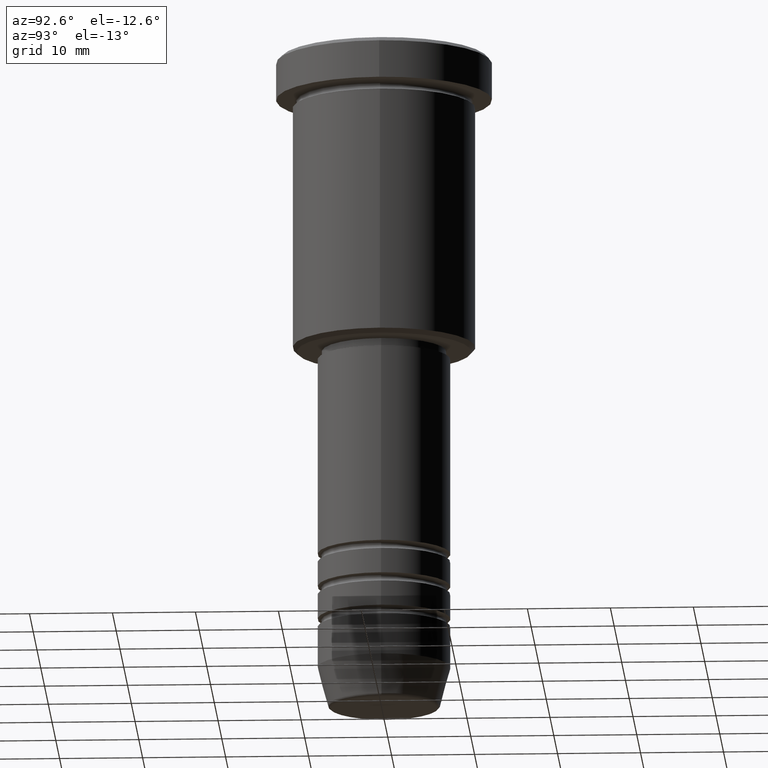
[diagram: clean part render]
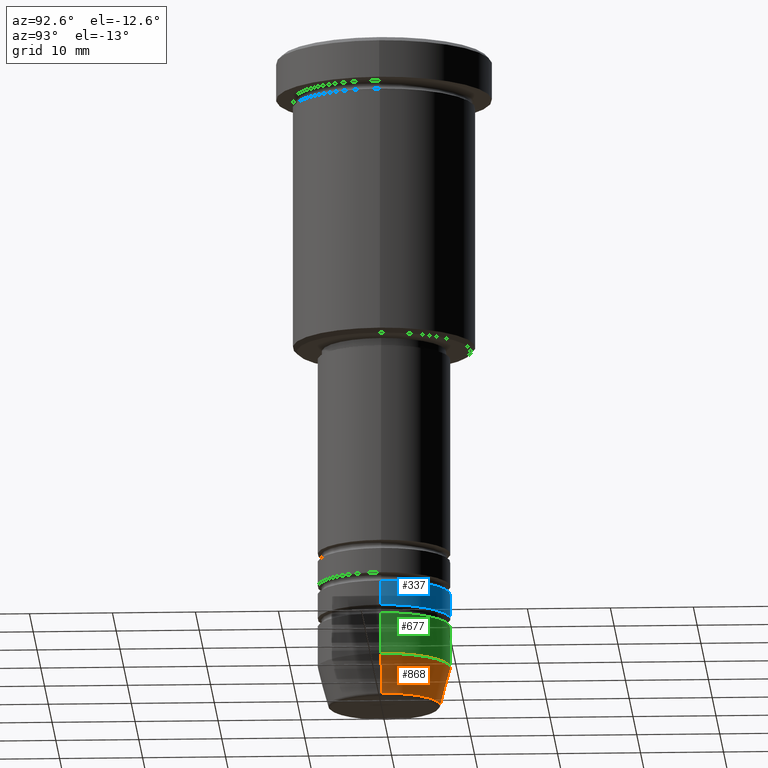
[diagram: same view with three faces highlighted in distinct colors, each labeled with its STEP entity id]
A machine part, auxiliary view with three faces highlighted in distinct colors.
Their STEP definitions:

[orange] entity #868 — the highlighted conical surface has half-angle 15 deg.
#4 = CARTESIAN_POINT ( 'NONE',  ( 0.000000000000000000, 0.000000000000000000, -79.62940952255127058 ) ) ;
#24 = EDGE_CURVE ( 'NONE', #238, #452, #613, .T. ) ;
#66 = CARTESIAN_POINT ( 'NONE',  ( -8.000000000000000000, 9.797174393178825657E-16, -75.00000000000001421 ) ) ;
#72 = LINE ( 'NONE', #982, #1026 ) ;
#75 = DIRECTION ( 'NONE',  ( 1.000000000000000000, 0.000000000000000000, 0.000000000000000000 ) ) ;
#105 = CARTESIAN_POINT ( 'NONE',  ( 0.000000000000000000, 0.000000000000000000, -75.00000000000001421 ) ) ;
#109 = DIRECTION ( 'NONE',  ( -0.000000000000000000, -0.000000000000000000, 1.000000000000000000 ) ) ;
#158 = EDGE_CURVE ( 'NONE', #893, #238, #929, .T. ) ;
#182 = DIRECTION ( 'NONE',  ( 0.2588190451025214611, 0.000000000000000000, 0.9659258262890679791 ) ) ;
#186 = CARTESIAN_POINT ( 'NONE',  ( 8.000000000000000000, 0.000000000000000000, -75.00000000000001421 ) ) ;
#225 = VERTEX_POINT ( 'NONE', #186 ) ;
#238 = VERTEX_POINT ( 'NONE', #559 ) ;
#244 = DIRECTION ( 'NONE',  ( -0.2588190451025214611, 3.169619151431774186E-17, 0.9659258262890679791 ) ) ;
#300 = FACE_OUTER_BOUND ( 'NONE', #925, .T. ) ;
#334 = VECTOR ( 'NONE', #244, 1000.000000000000114 ) ;
#343 = AXIS2_PLACEMENT_3D ( 'NONE', #105, #109, #381 ) ;
#351 = ORIENTED_EDGE ( 'NONE', *, *, #24, .T. ) ;
#352 = DIRECTION ( 'NONE',  ( 1.000000000000000000, 0.000000000000000000, 0.000000000000000000 ) ) ;
#381 = DIRECTION ( 'NONE',  ( 1.000000000000000000, 0.000000000000000000, 0.000000000000000000 ) ) ;
#452 = VERTEX_POINT ( 'NONE', #1138 ) ;
#466 = ORIENTED_EDGE ( 'NONE', *, *, #662, .F. ) ;
#470 = CONICAL_SURFACE ( 'NONE', #343, 8.000000000000000000, 0.2617993877991502405 ) ;
#532 = CIRCLE ( 'NONE', #796, 8.000000000000000000 ) ;
#559 = CARTESIAN_POINT ( 'NONE',  ( -6.759553456999441323, 9.037619948979308185E-16, -79.62940952255127058 ) ) ;
#578 = CARTESIAN_POINT ( 'NONE',  ( 6.759553456999440435, 0.000000000000000000, -79.62940952255127058 ) ) ;
#613 = LINE ( 'NONE', #66, #334 ) ;
#662 = EDGE_CURVE ( 'NONE', #893, #225, #72, .T. ) ;
#733 = DIRECTION ( 'NONE',  ( -0.000000000000000000, -0.000000000000000000, 1.000000000000000000 ) ) ;
#783 = CARTESIAN_POINT ( 'NONE',  ( 0.000000000000000000, 0.000000000000000000, -75.00000000000001421 ) ) ;
#796 = AXIS2_PLACEMENT_3D ( 'NONE', #783, #1147, #352 ) ;
#868 = ADVANCED_FACE ( 'NONE', ( #300 ), #470, .T. ) ;
#893 = VERTEX_POINT ( 'NONE', #578 ) ;
#925 = EDGE_LOOP ( 'NONE', ( #1165, #351, #972, #466 ) ) ;
#929 = CIRCLE ( 'NONE', #1140, 6.759553456999440435 ) ;
#972 = ORIENTED_EDGE ( 'NONE', *, *, #1045, .F. ) ;
#982 = CARTESIAN_POINT ( 'NONE',  ( 8.000000000000000000, 0.000000000000000000, -75.00000000000001421 ) ) ;
#1026 = VECTOR ( 'NONE', #182, 1000.000000000000114 ) ;
#1045 = EDGE_CURVE ( 'NONE', #225, #452, #532, .T. ) ;
#1138 = CARTESIAN_POINT ( 'NONE',  ( -8.000000000000000000, 9.797174393178825657E-16, -75.00000000000001421 ) ) ;
#1140 = AXIS2_PLACEMENT_3D ( 'NONE', #4, #733, #75 ) ;
#1147 = DIRECTION ( 'NONE',  ( -0.000000000000000000, -0.000000000000000000, 1.000000000000000000 ) ) ;
#1165 = ORIENTED_EDGE ( 'NONE', *, *, #158, .T. ) ;

[blue] entity #337 — the highlighted cylindrical surface (partial cylindrical patch) has radius 8 mm, axis along (-0, -0, 1).
#18 = VECTOR ( 'NONE', #1100, 1000.000000000000000 ) ;
#32 = VERTEX_POINT ( 'NONE', #524 ) ;
#46 = VECTOR ( 'NONE', #429, 1000.000000000000000 ) ;
#76 = EDGE_CURVE ( 'NONE', #32, #824, #525, .T. ) ;
#89 = CARTESIAN_POINT ( 'NONE',  ( -8.000000000000000000, 9.797174393178825657E-16, -69.00000000000000000 ) ) ;
#90 = EDGE_CURVE ( 'NONE', #1152, #824, #1156, .T. ) ;
#116 = CIRCLE ( 'NONE', #725, 8.000000000000000000 ) ;
#155 = CARTESIAN_POINT ( 'NONE',  ( 0.000000000000000000, 0.000000000000000000, -66.00000000000000000 ) ) ;
#202 = DIRECTION ( 'NONE',  ( 1.000000000000000000, 0.000000000000000000, 0.000000000000000000 ) ) ;
#215 = DIRECTION ( 'NONE',  ( -0.000000000000000000, -0.000000000000000000, 1.000000000000000000 ) ) ;
#223 = CARTESIAN_POINT ( 'NONE',  ( 0.000000000000000000, 0.000000000000000000, -69.00000000000000000 ) ) ;
#237 = AXIS2_PLACEMENT_3D ( 'NONE', #670, #757, #202 ) ;
#249 = CARTESIAN_POINT ( 'NONE',  ( -8.000000000000000000, 9.797174393178825657E-16, 0.000000000000000000 ) ) ;
#266 = CARTESIAN_POINT ( 'NONE',  ( 8.000000000000000000, 0.000000000000000000, 0.000000000000000000 ) ) ;
#337 = ADVANCED_FACE ( 'NONE', ( #845 ), #1133, .T. ) ;
#429 = DIRECTION ( 'NONE',  ( -0.000000000000000000, -0.000000000000000000, 1.000000000000000000 ) ) ;
#505 = ORIENTED_EDGE ( 'NONE', *, *, #90, .T. ) ;
#524 = CARTESIAN_POINT ( 'NONE',  ( 8.000000000000000000, 0.000000000000000000, -66.00000000000000000 ) ) ;
#525 = CIRCLE ( 'NONE', #562, 8.000000000000000000 ) ;
#534 = CARTESIAN_POINT ( 'NONE',  ( 8.000000000000000000, 0.000000000000000000, -69.00000000000000000 ) ) ;
#562 = AXIS2_PLACEMENT_3D ( 'NONE', #155, #600, #780 ) ;
#598 = VERTEX_POINT ( 'NONE', #534 ) ;
#600 = DIRECTION ( 'NONE',  ( -0.000000000000000000, -0.000000000000000000, 1.000000000000000000 ) ) ;
#623 = DIRECTION ( 'NONE',  ( 1.000000000000000000, 0.000000000000000000, 0.000000000000000000 ) ) ;
#670 = CARTESIAN_POINT ( 'NONE',  ( 0.000000000000000000, 0.000000000000000000, 0.000000000000000000 ) ) ;
#709 = ORIENTED_EDGE ( 'NONE', *, *, #76, .F. ) ;
#719 = LINE ( 'NONE', #266, #18 ) ;
#725 = AXIS2_PLACEMENT_3D ( 'NONE', #223, #215, #623 ) ;
#751 = ORIENTED_EDGE ( 'NONE', *, *, #1060, .F. ) ;
#757 = DIRECTION ( 'NONE',  ( -0.000000000000000000, -0.000000000000000000, 1.000000000000000000 ) ) ;
#780 = DIRECTION ( 'NONE',  ( 1.000000000000000000, 0.000000000000000000, 0.000000000000000000 ) ) ;
#824 = VERTEX_POINT ( 'NONE', #1129 ) ;
#845 = FACE_OUTER_BOUND ( 'NONE', #1016, .T. ) ;
#964 = ORIENTED_EDGE ( 'NONE', *, *, #992, .T. ) ;
#992 = EDGE_CURVE ( 'NONE', #598, #1152, #116, .T. ) ;
#1016 = EDGE_LOOP ( 'NONE', ( #964, #505, #709, #751 ) ) ;
#1060 = EDGE_CURVE ( 'NONE', #598, #32, #719, .T. ) ;
#1100 = DIRECTION ( 'NONE',  ( -0.000000000000000000, -0.000000000000000000, 1.000000000000000000 ) ) ;
#1129 = CARTESIAN_POINT ( 'NONE',  ( -8.000000000000000000, 9.797174393178825657E-16, -66.00000000000000000 ) ) ;
#1133 = CYLINDRICAL_SURFACE ( 'NONE', #237, 8.000000000000000000 ) ;
#1152 = VERTEX_POINT ( 'NONE', #89 ) ;
#1156 = LINE ( 'NONE', #249, #46 ) ;

[green] entity #677 — the highlighted cylindrical surface (partial cylindrical patch) has radius 8 mm, axis along (-0, -0, 1).
#36 = CIRCLE ( 'NONE', #286, 8.000000000000000000 ) ;
#54 = VECTOR ( 'NONE', #630, 1000.000000000000000 ) ;
#92 = FACE_OUTER_BOUND ( 'NONE', #993, .T. ) ;
#97 = VERTEX_POINT ( 'NONE', #236 ) ;
#174 = DIRECTION ( 'NONE',  ( 1.000000000000000000, 0.000000000000000000, 0.000000000000000000 ) ) ;
#186 = CARTESIAN_POINT ( 'NONE',  ( 8.000000000000000000, 0.000000000000000000, -75.00000000000001421 ) ) ;
#187 = ORIENTED_EDGE ( 'NONE', *, *, #1098, .F. ) ;
#225 = VERTEX_POINT ( 'NONE', #186 ) ;
#236 = CARTESIAN_POINT ( 'NONE',  ( -8.000000000000000000, 9.797174393178825657E-16, -70.00000000000000000 ) ) ;
#286 = AXIS2_PLACEMENT_3D ( 'NONE', #288, #1013, #174 ) ;
#288 = CARTESIAN_POINT ( 'NONE',  ( 0.000000000000000000, 0.000000000000000000, -70.00000000000000000 ) ) ;
#317 = CARTESIAN_POINT ( 'NONE',  ( 8.000000000000000000, 0.000000000000000000, 0.000000000000000000 ) ) ;
#352 = DIRECTION ( 'NONE',  ( 1.000000000000000000, 0.000000000000000000, 0.000000000000000000 ) ) ;
#376 = EDGE_CURVE ( 'NONE', #452, #97, #1021, .T. ) ;
#394 = ORIENTED_EDGE ( 'NONE', *, *, #940, .F. ) ;
#433 = DIRECTION ( 'NONE',  ( 1.000000000000000000, 0.000000000000000000, 0.000000000000000000 ) ) ;
#440 = ORIENTED_EDGE ( 'NONE', *, *, #1045, .T. ) ;
#452 = VERTEX_POINT ( 'NONE', #1138 ) ;
#454 = CYLINDRICAL_SURFACE ( 'NONE', #1062, 8.000000000000000000 ) ;
#532 = CIRCLE ( 'NONE', #796, 8.000000000000000000 ) ;
#539 = DIRECTION ( 'NONE',  ( -0.000000000000000000, -0.000000000000000000, 1.000000000000000000 ) ) ;
#568 = VECTOR ( 'NONE', #947, 1000.000000000000000 ) ;
#630 = DIRECTION ( 'NONE',  ( -0.000000000000000000, -0.000000000000000000, 1.000000000000000000 ) ) ;
#677 = ADVANCED_FACE ( 'NONE', ( #92 ), #454, .T. ) ;
#735 = CARTESIAN_POINT ( 'NONE',  ( 8.000000000000000000, 0.000000000000000000, -70.00000000000000000 ) ) ;
#765 = CARTESIAN_POINT ( 'NONE',  ( -8.000000000000000000, 9.797174393178825657E-16, 0.000000000000000000 ) ) ;
#783 = CARTESIAN_POINT ( 'NONE',  ( 0.000000000000000000, 0.000000000000000000, -75.00000000000001421 ) ) ;
#796 = AXIS2_PLACEMENT_3D ( 'NONE', #783, #1147, #352 ) ;
#863 = LINE ( 'NONE', #317, #54 ) ;
#940 = EDGE_CURVE ( 'NONE', #225, #1146, #863, .T. ) ;
#947 = DIRECTION ( 'NONE',  ( -0.000000000000000000, -0.000000000000000000, 1.000000000000000000 ) ) ;
#993 = EDGE_LOOP ( 'NONE', ( #440, #1042, #187, #394 ) ) ;
#1000 = CARTESIAN_POINT ( 'NONE',  ( 0.000000000000000000, 0.000000000000000000, 0.000000000000000000 ) ) ;
#1013 = DIRECTION ( 'NONE',  ( -0.000000000000000000, -0.000000000000000000, 1.000000000000000000 ) ) ;
#1021 = LINE ( 'NONE', #765, #568 ) ;
#1042 = ORIENTED_EDGE ( 'NONE', *, *, #376, .T. ) ;
#1045 = EDGE_CURVE ( 'NONE', #225, #452, #532, .T. ) ;
#1062 = AXIS2_PLACEMENT_3D ( 'NONE', #1000, #539, #433 ) ;
#1098 = EDGE_CURVE ( 'NONE', #1146, #97, #36, .T. ) ;
#1138 = CARTESIAN_POINT ( 'NONE',  ( -8.000000000000000000, 9.797174393178825657E-16, -75.00000000000001421 ) ) ;
#1146 = VERTEX_POINT ( 'NONE', #735 ) ;
#1147 = DIRECTION ( 'NONE',  ( -0.000000000000000000, -0.000000000000000000, 1.000000000000000000 ) ) ;